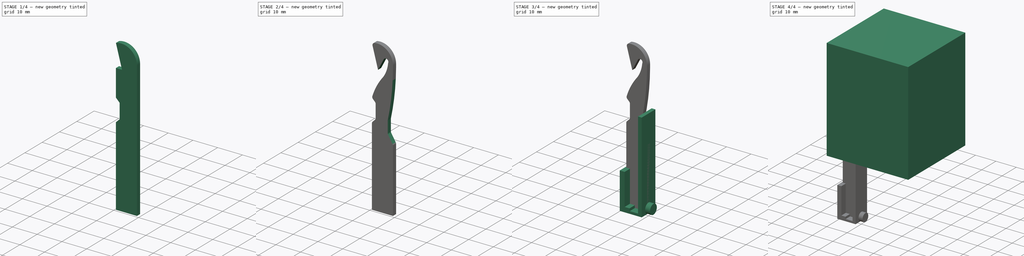
[diagram: build sequence overview — one tinted view per stage of 4, left to right]
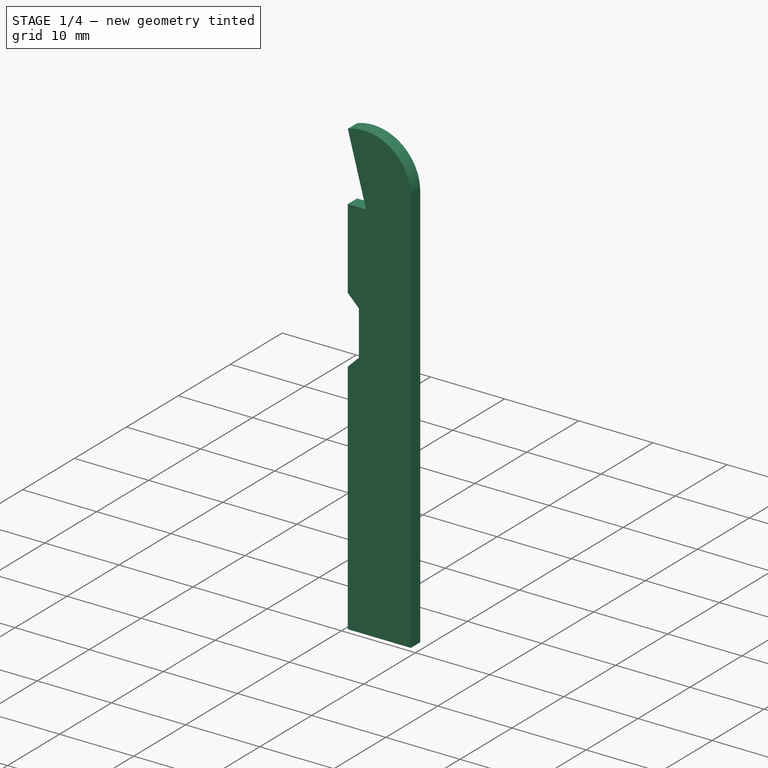
[diagram: stage 1 of 4 — iso view after this stage's code; geometry added in this stage tinted green]
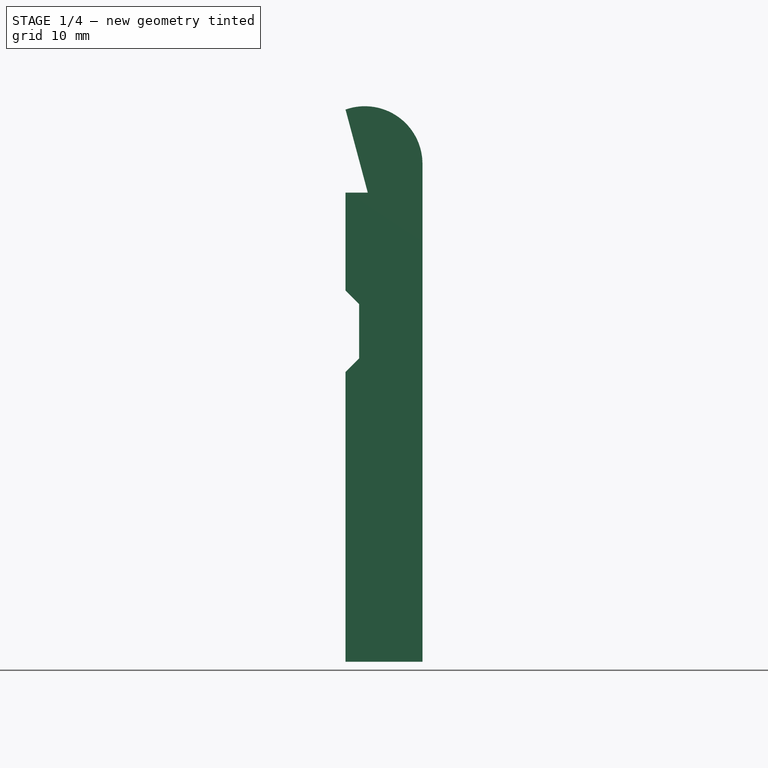
[diagram: stage 1 of 4 — front view after this stage's code; geometry added in this stage tinted green]
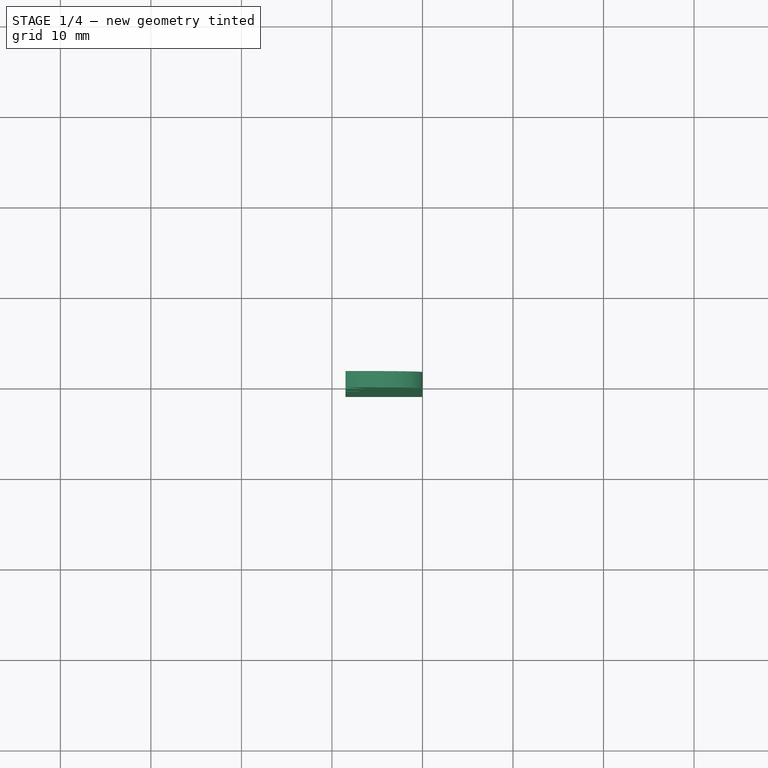
[diagram: stage 1 of 4 — top view after this stage's code; geometry added in this stage tinted green]
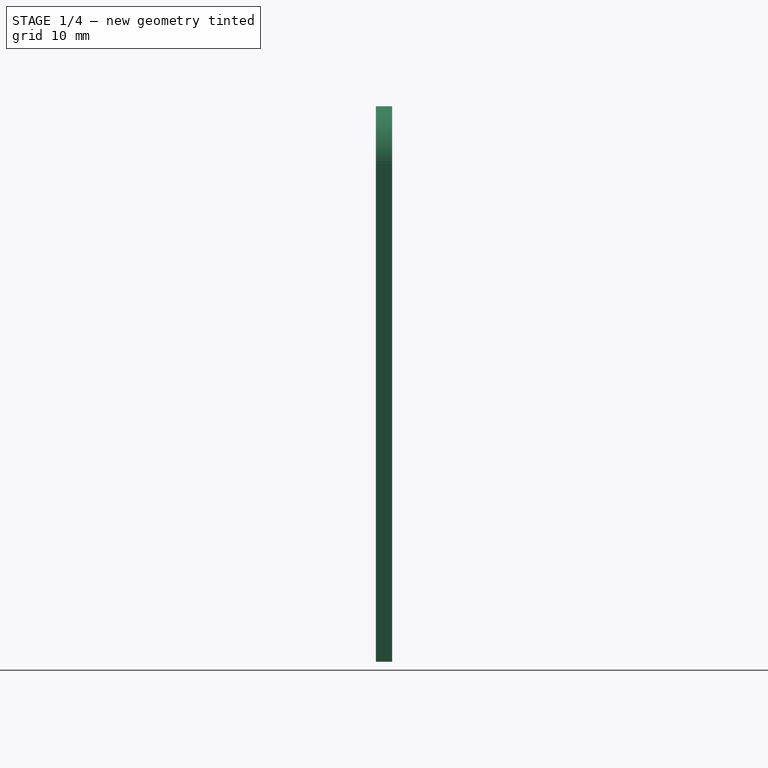
[diagram: stage 1 of 4 — right view after this stage's code; geometry added in this stage tinted green]
FCSTD DOCUMENT  (FreeCAD 0.16RUnknown)
Label: needle
License: CC-BY 3.0
LicenseURL: http://creativecommons.org/licenses/by/3.0/
objects: Sketcher::SketchObject×9, App::MeasureDistance×6, PartDesign::Pad×5, PartDesign::Pocket×4, Part::Box×1, Part::MultiFuse×1, PartDesign::Fillet×1
note: 30 computed .brp shape members not serialized (recipe doc carries the construction recipe); baked Part::Feature solids carry a one-line shape summary decoded from their .brp

FEATURE [Sketcher::SketchObject] Sketch004  label="base"
  Placement = pos=(0,0,0) rot=(1,0,0;1.5708rad)
  sketch-geometry (4):
    g0: LineSegment StartX=0 StartY=0 StartZ=0 EndX=0 EndY=55 EndZ=0
    g1: LineSegment StartX=0 StartY=0 StartZ=0 EndX=-8.5 EndY=0 EndZ=0
    g2: ArcOfCircle CenterX=-6.36764 CenterY=55 CenterZ=0 NormalX=0 NormalY=0 NormalZ=1 Radius=6.36764 StartAngle=6.28318 EndAngle=8.19545
    g3: LineSegment StartX=-8.5 StartY=61 StartZ=0 EndX=-8.5 EndY=0 EndZ=0
  constraints (13):
    c: Vertical(g0)
    c: Horizontal(g1)
    c: Vertical(g3)
    c: DistanceX(g1,g1) = 8.5
    c: DistanceY(g1,g2) = 61
    c: Coincident(g1,g0)
    c: Coincident(g3,g2)
    c: Coincident(g0,g2)
    c: Tangent(g0,g2)
    c: PointOnObject(g-1,g1)
    c: DistanceY(g0,g2) = 6
    c: DistanceX(g-1,g0) = 0
    c: Coincident(g3,g1)
FEATURE [PartDesign::Pad] Pad006
  Length = 1.8
  Length2 = 100
  Midplane = true
  Placement = pos=(0,0,0) rot=(1,0,0;1.5708rad)
  Sketch = -> Sketch004
  Type = 0
FEATURE [Sketcher::SketchObject] Sketch006  label="crest"
  ExternalGeometry = -> [Pad006]
  Placement = pos=(0,-0.9,0) rot=(1,0,0;1.5708rad)
  Support = -> Pad006 [Face6]
  sketch-geometry (5):
    g0: LineSegment StartX=-7 StartY=33.5 StartZ=0 EndX=-7 EndY=39.5 EndZ=0
    g1: LineSegment StartX=-8.5 StartY=41 StartZ=0 EndX=-8.5 EndY=32 EndZ=0
    g2: LineSegment StartX=-8.5 StartY=41 StartZ=0 EndX=-7 EndY=39.5 EndZ=0
    g3: LineSegment StartX=-8.5 StartY=32 StartZ=0 EndX=-7 EndY=33.5 EndZ=0
    g4: LineSegment [constr] StartX=-8.5 StartY=36.5 StartZ=0 EndX=-7 EndY=36.5 EndZ=0
  constraints (16):
    c: Distance(g0) = 6
    c: Parallel(g1,g0)
    c: Coincident(g2,g0)
    c: Coincident(g3,g0)
    c: Angle(g1,g2) = 0.785398
    c: PointOnObject(g4,g1)
    c: PointOnObject(g4,g0)
    c: Horizontal(g4)
    c: Symmetric(g0,g0,g4)
    c: Symmetric(g1,g1,g4)
    c: Coincident(g2,g1)
    c: Distance(g4) = 1.5
    c: Coincident(g1,g3)
    c: Vertical(g1)
    c: PointOnObject(g1,g-3)
    c: DistanceY(g-3,g1) = 32
FEATURE [PartDesign::Pocket] Pocket
  Length = 5
  Placement = pos=(0,0,0) rot=(1,0,0;1.5708rad)
  Sketch = -> Sketch006
  Type = 1
FEATURE [Sketcher::SketchObject] Sketch005  label="forehead"
  ExternalGeometry = -> [Pocket]
  Placement = pos=(0,-0.9,0) rot=(1,0,0;1.5708rad)
  Support = -> Pocket [Face5]
  sketch-geometry (3):
    g0: LineSegment StartX=-8.5 StartY=61 StartZ=0 EndX=-8.5 EndY=51.8237 EndZ=0
    g1: LineSegment StartX=-8.5 StartY=61 StartZ=0 EndX=-6.04122 EndY=51.8237 EndZ=0
    g2: LineSegment StartX=-8.5 StartY=51.8237 StartZ=0 EndX=-6.04122 EndY=51.8237 EndZ=0
  constraints (6):
    c: Coincident(g1,g0)
    c: Vertical(g0)
    c: Coincident(g2,g0)
    c: Coincident(g1,g2)
    c: Horizontal(g2)
    c: Distance(g1) = 9.5
FEATURE [PartDesign::Pocket] Pocket001
  Length = 5
  Placement = pos=(0,0,0) rot=(1,0,0;1.5708rad)
  Sketch = -> Sketch005
  Type = 1
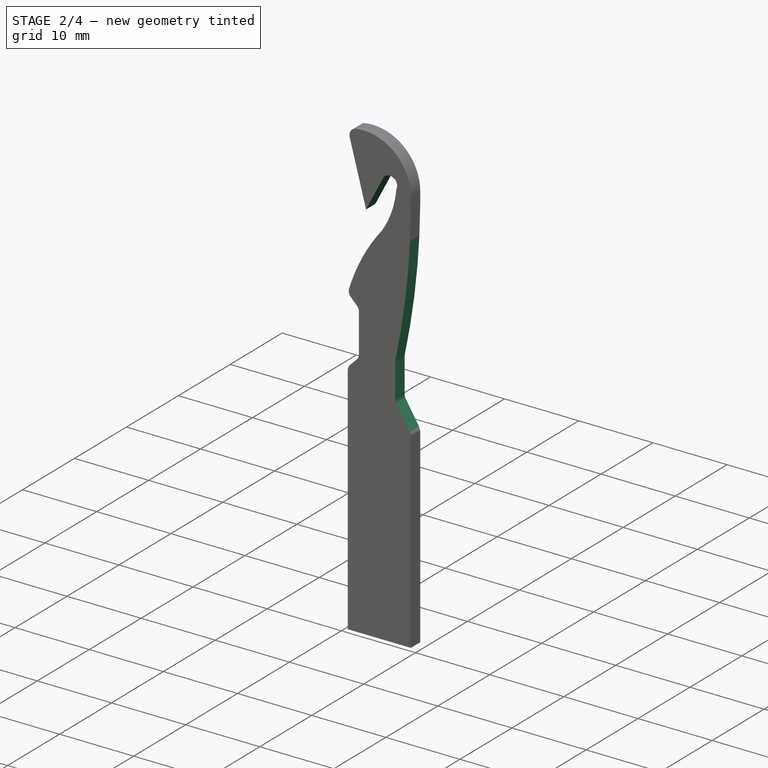
[diagram: stage 2 of 4 — iso view after this stage's code; geometry added in this stage tinted green]
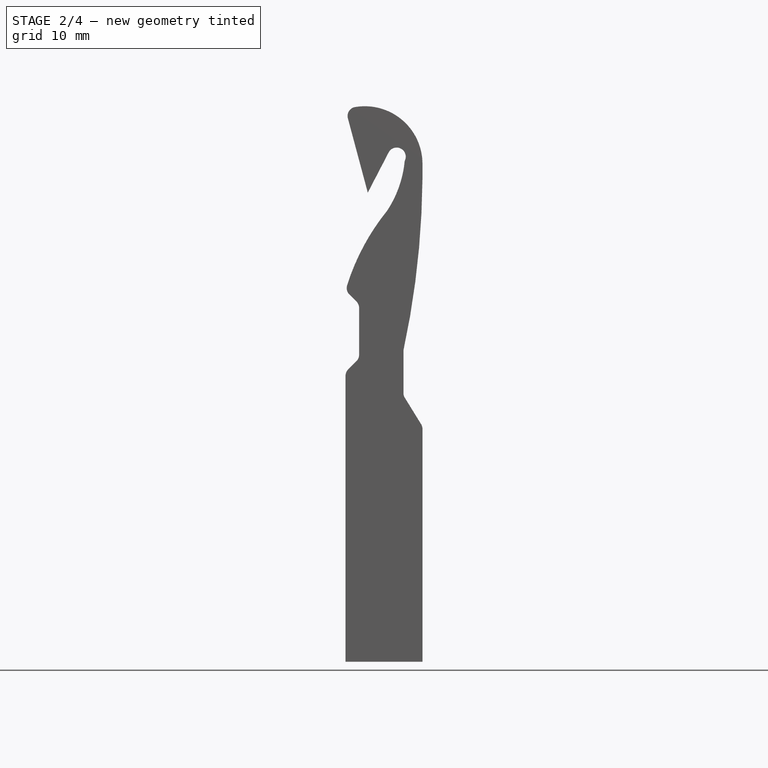
[diagram: stage 2 of 4 — front view after this stage's code; geometry added in this stage tinted green]
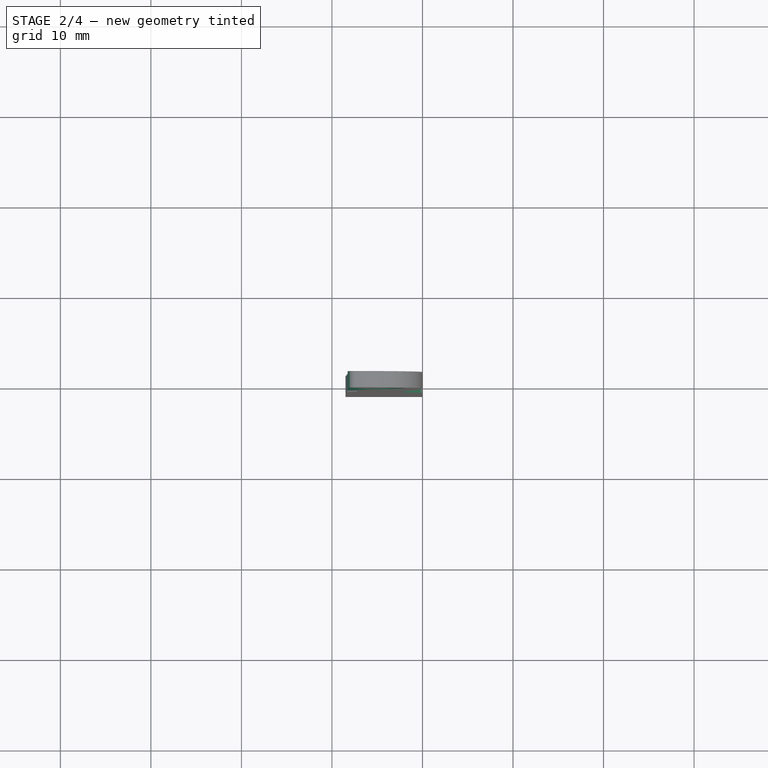
[diagram: stage 2 of 4 — top view after this stage's code; geometry added in this stage tinted green]
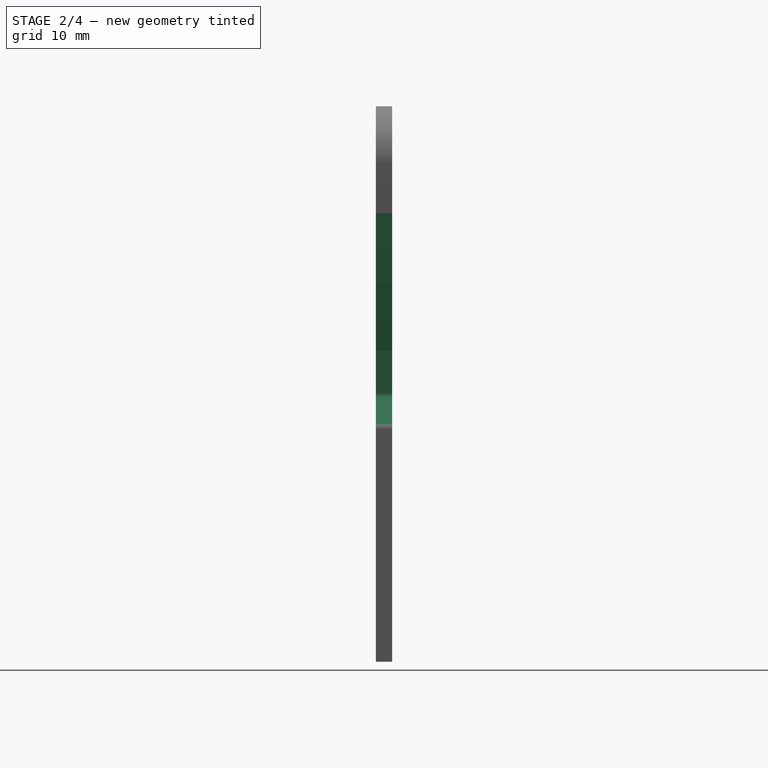
[diagram: stage 2 of 4 — right view after this stage's code; geometry added in this stage tinted green]
FEATURE [Sketcher::SketchObject] Sketch007  label="hole"
  ExternalGeometry = -> [Pocket001]
  Placement = pos=(0,-0.9,0) rot=(1,0,0;1.5708rad)
  Support = -> Pocket001 [Face5]
  sketch-geometry (8):
    g0: ArcOfCircle CenterX=-13.9112 CenterY=56.4446 CenterZ=0 NormalX=0 NormalY=0 NormalZ=1 Radius=12 StartAngle=5.69874 EndAngle=6.19097
    g1: LineSegment [constr] StartX=-6.04122 StartY=51.8237 StartZ=0 EndX=-6.07079 EndY=52.4849 EndZ=0
    g2: ArcOfCircle CenterX=-2.8497 CenterY=55.8004 CenterZ=0 NormalX=0 NormalY=0 NormalZ=1 Radius=1 StartAngle=5.80428 EndAngle=8.94588
    g3: LineSegment StartX=-6.04122 StartY=51.8237 StartZ=0 EndX=-3.7372 EndY=56.2612 EndZ=0
    g4: LineSegment [constr] StartX=-3.7372 StartY=56.2612 StartZ=0 EndX=-1.9622 EndY=55.3396 EndZ=0
    g5: ArcOfCircle CenterX=15.5266 CenterY=34.0919 CenterZ=0 NormalX=0 NormalY=0 NormalZ=1 Radius=25 StartAngle=2.46098 EndAngle=2.86163
    g6: LineSegment StartX=-6.04122 StartY=51.8237 StartZ=0 EndX=-8.5 EndY=51.8237 EndZ=0
    g7: LineSegment StartX=-8.5 StartY=51.8237 StartZ=0 EndX=-8.5 EndY=41 EndZ=0
  constraints (19):
    c: Coincident(g2,g0)
    c: Coincident(g3,g1)
    c: Coincident(g3,g2)
    c: Tangent(g3,g2)
    c: Coincident(g4,g2)
    c: Coincident(g4,g0)
    c: Distance(g4) = 2
    c: Distance(g3) = 5
    c: Radius(g5) = 25
    c: Angle(g1,g-2) = 3.0969
    c: DistanceY(g0,g1) = 2
    c: Coincident(g0,g5)
    c: Radius(g0) = 12
    c: DistanceX(g1,g0) = 2.1382
    c: Coincident(g6,g1)
    c: Coincident(g7,g6)
    c: Coincident(g7,g5)
    c: Angle(g3,g6) = 2.0497
    c: Perpendicular(g4,g3)
FEATURE [PartDesign::Pocket] Pocket002
  Length = 5
  Placement = pos=(0,0,0) rot=(1,0,0;1.5708rad)
  Sketch = -> Sketch007
  Type = 1
FEATURE [Sketcher::SketchObject] Sketch008  label="neckback"
  ExternalGeometry = -> [Pocket002]
  Placement = pos=(0,-0.9,0) rot=(1,0,0;1.5708rad)
  Support = -> Pocket002 [Face5]
  sketch-geometry (4):
    g0: LineSegment StartX=0 StartY=26 StartZ=0 EndX=-2.1 EndY=29.4044 EndZ=0
    g1: LineSegment StartX=-2.1 StartY=29.4044 StartZ=0 EndX=-2.1 EndY=34.4044 EndZ=0
    g2: ArcOfCircle CenterX=-94.0009 CenterY=54.1798 CenterZ=0 NormalX=0 NormalY=0 NormalZ=1 Radius=94.0045 StartAngle=6.07124 EndAngle=6.29191
    g3: LineSegment StartX=0 StartY=55 StartZ=0 EndX=0 EndY=26 EndZ=0
  constraints (12):
    c: PointOnObject(g0,g-2)
    c: Coincident(g1,g0)
    c: Vertical(g1)
    c: Coincident(g2,g1)
    c: Coincident(g3,g2)
    c: Coincident(g3,g0)
    c: Vertical(g3)
    c: DistanceY(g-1,g0) = 26
    c: Distance(g0) = 4
    c: DistanceX(g0,g0) = 2.1
    c: Coincident(g2,g-3)
    c: DistanceY(g1,g1) = 5
FEATURE [PartDesign::Pocket] Pocket003
  Length = 5
  Placement = pos=(0,0,0) rot=(1,0,0;1.5708rad)
  Sketch = -> Sketch008
  Type = 1
FEATURE [PartDesign::Fillet] Fillet
  Base = -> Pocket003 [Edge45,Edge40,Edge39,Edge38,Edge37,Edge21,Edge2]
  Placement = pos=(0,0,0) rot=(1,0,0;1.5708rad)
  Radius = 1
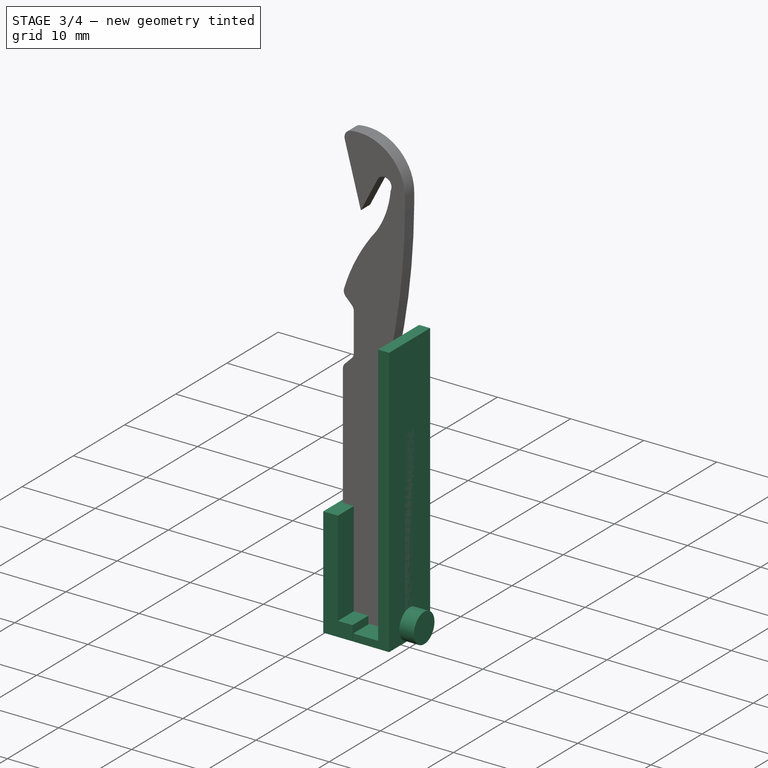
[diagram: stage 3 of 4 — iso view after this stage's code; geometry added in this stage tinted green]
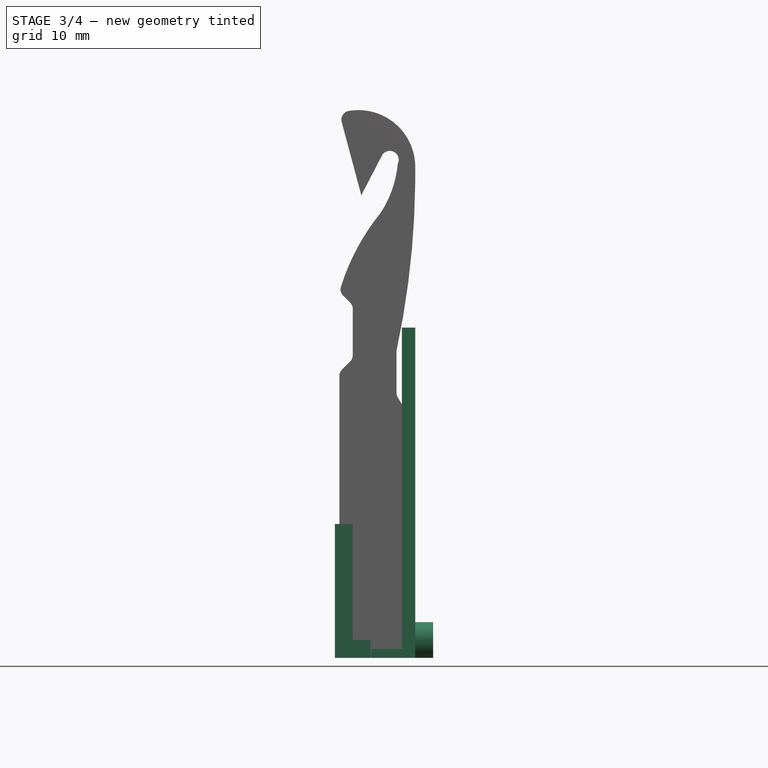
[diagram: stage 3 of 4 — front view after this stage's code; geometry added in this stage tinted green]
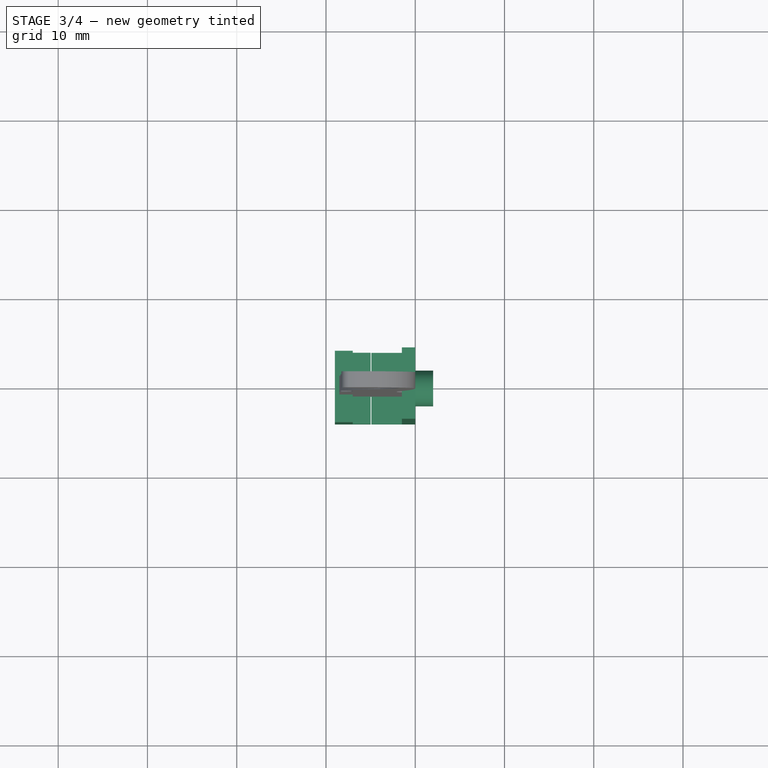
[diagram: stage 3 of 4 — top view after this stage's code; geometry added in this stage tinted green]
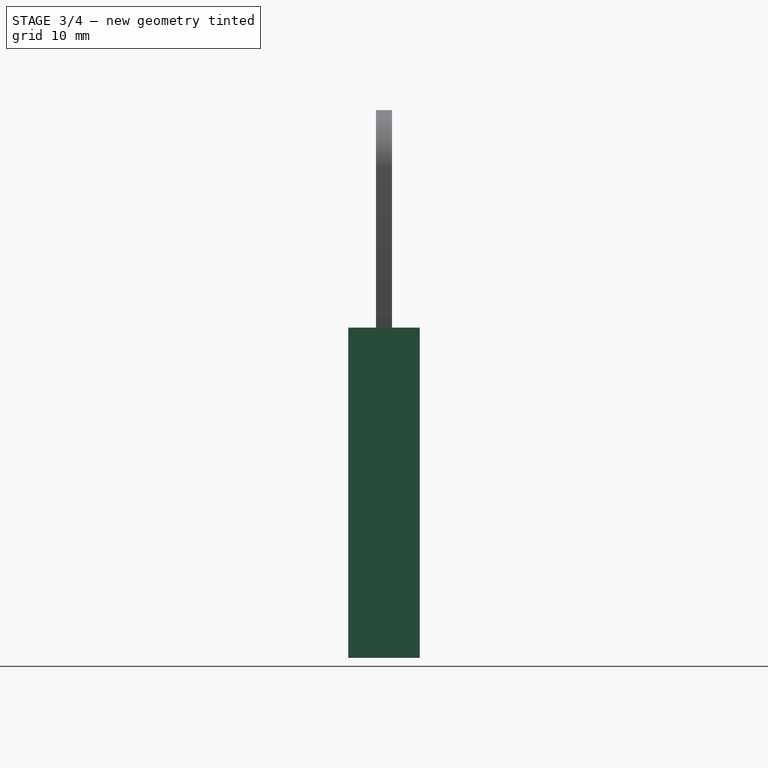
[diagram: stage 3 of 4 — right view after this stage's code; geometry added in this stage tinted green]
FEATURE [Sketcher::SketchObject] Sketch  label="needle-outer"
  Placement = pos=(0,0,0) rot=(1,0,0;1.5708rad)
  sketch-geometry (11):
    g0: LineSegment StartX=-1.5 StartY=37 StartZ=0 EndX=0 EndY=37 EndZ=0
    g1: LineSegment StartX=0 StartY=37 StartZ=0 EndX=0 EndY=0 EndZ=0
    g2: ArcOfCircle [constr] CenterX=38.9236 CenterY=39.4764 CenterZ=0 NormalX=0 NormalY=0 NormalZ=1 Radius=39.0023 StartAngle=2.63123 EndAngle=3.20513
    g3: ArcOfCircle [constr] CenterX=40.4733 CenterY=36.4786 CenterZ=0 NormalX=0 NormalY=0 NormalZ=1 Radius=41.9765 StartAngle=2.59538 EndAngle=3.12917
    g4: LineSegment StartX=0 StartY=0 StartZ=0 EndX=-4.90865 EndY=0 EndZ=0
    g5: LineSegment StartX=-4.90865 StartY=0 StartZ=0 EndX=-4.90865 EndY=1 EndZ=0
    g6: LineSegment StartX=-4.90865 StartY=1 StartZ=0 EndX=-1.5 EndY=1 EndZ=0
    g7: LineSegment StartX=-1.5 StartY=37 StartZ=0 EndX=-1.5 EndY=1 EndZ=0
    g8: ArcOfCircle [constr] CenterX=-14.4844 CenterY=64.0326 CenterZ=0 NormalX=0 NormalY=0 NormalZ=1 Radius=20.1425 StartAngle=6.00643 EndAngle=6.43238
    g9: ArcOfCircle [constr] CenterX=-11.542 CenterY=63.0969 CenterZ=0 NormalX=0 NormalY=0 NormalZ=1 Radius=16.8486 StartAngle=5.99345 EndAngle=6.4867
    g10: LineSegment [constr] StartX=4.95886 StartY=66.5022 StartZ=0 EndX=5.43428 EndY=67.0266 EndZ=0
  constraints (22):
    c: Coincident(g0,g1)
    c: Horizontal(g0)
    c: Vertical(g1)
    c: DistanceY(g1) = -37
    c: Coincident(g2,g0)
    c: Coincident(g4,g5)
    c: Coincident(g5,g6)
    c: Horizontal(g4)
    c: Horizontal(g6)
    c: Vertical(g5)
    c: Coincident(g7,g0)
    c: Coincident(g7,g6)
    c: Vertical(g7)
    c: Coincident(g8,g2)
    c: Coincident(g3,g0)
    c: Coincident(g4,g-1)
    c: DistanceX(g-1,g6) = -1.5
    c: DistanceY(g5) = 1
    c: Coincident(g-1,g1)
    c: Coincident(g9,g3)
    c: Coincident(g10,g9)
    c: Coincident(g10,g8)
FEATURE [Sketcher::SketchObject] Sketch002  label="guide-pin"
  Placement = pos=(0,0,0) rot=(0.57735,0.57735,0.57735;2.0944rad)
  sketch-geometry (1):
    g0: Circle CenterX=0 CenterY=2 CenterZ=0 NormalX=0 NormalY=0 NormalZ=1 Radius=2
  constraints (3):
    c: PointOnObject(g0,g-2)
    c: DistanceY(g-1,g0) = 2
    c: Radius(g0) = 2
FEATURE [App::MeasureDistance] Distance  label="Distance: 3.999"
  Distance = 3.99946
  P1 = (0.00231622,-0.236815,0.0153526)
  P2 = (4,-0.11788,0.00832193)
FEATURE [App::MeasureDistance] Distance001  label="Distance: 3.962"
  Distance = 3.9619
  P1 = (3.99617,-1.99139,1.83564)
  P2 = (4,1.96786,1.98064)
FEATURE [App::MeasureDistance] Distance002  label="Distance: 5.787"
  Distance = 5.78742
  P1 = (-4.99358,-1,2.81958)
  P2 = (-0.0482684,-4,3.01479)
FEATURE [App::MeasureDistance] Distance003  label="Distance: 4.881"
  Distance = 4.88093
  P1 = (-4.90506,-4,0.00223583)
  P2 = (-0.0241406,-3.98973,-4.75613e-07)
FEATURE [Sketcher::SketchObject] Sketch003  label="guide-twist-lock"
  Placement = pos=(0,0,0) rot=(1,0,0;1.5708rad)
  sketch-geometry (6):
    g0: LineSegment StartX=-9 StartY=15 StartZ=0 EndX=-7 EndY=15 EndZ=0
    g1: LineSegment StartX=-5 StartY=0 StartZ=0 EndX=-9 EndY=0 EndZ=0
    g2: LineSegment StartX=-9 StartY=0 StartZ=0 EndX=-9 EndY=15 EndZ=0
    g3: LineSegment StartX=-5 StartY=0 StartZ=0 EndX=-5 EndY=2 EndZ=0
    g4: LineSegment StartX=-5 StartY=2 StartZ=0 EndX=-7 EndY=2 EndZ=0
    g5: LineSegment StartX=-7 StartY=2 StartZ=0 EndX=-7 EndY=15 EndZ=0
  constraints (18):
    c: Coincident(g1,g2)
    c: Coincident(g2,g0)
    c: Horizontal(g0)
    c: Horizontal(g1)
    c: Vertical(g2)
    c: Coincident(g3,g1)
    c: Vertical(g3)
    c: Coincident(g4,g3)
    c: Horizontal(g4)
    c: Coincident(g5,g4)
    c: Coincident(g5,g0)
    c: Vertical(g5)
    c: DistanceY(g3) = 2
    c: DistanceY(g2) = 15
    c: DistanceX(g0) = 2
    c: DistanceX(g4) = -2
    c: DistanceY(g-1,g1) = 0
    c: DistanceX(g-1,g1) = -5
FEATURE [PartDesign::Pad] Pad003
  Length = 8
  Length2 = 100
  Midplane = true
  Placement = pos=(0,0,0) rot=(1,0,0;1.5708rad)
  Sketch = -> Sketch003
  Type = 0
FEATURE [App::MeasureDistance] Distance005  label="Distance: 1.800"
  Distance = 1.8
  P1 = (-5,0.9,30)
  P2 = (-5,-0.9,30)
FEATURE [PartDesign::Pad] Pad004
  Length = 2
  Length2 = 100
  Placement = pos=(0,0,0) rot=(0.57735,0.57735,0.57735;2.0944rad)
  Sketch = -> Sketch002
  Type = 0
FEATURE [PartDesign::Pad] Pad005
  Length = 8
  Length2 = 100
  Midplane = true
  Placement = pos=(0,0,0) rot=(1,0,0;1.5708rad)
  Sketch = -> Sketch
  Type = 0
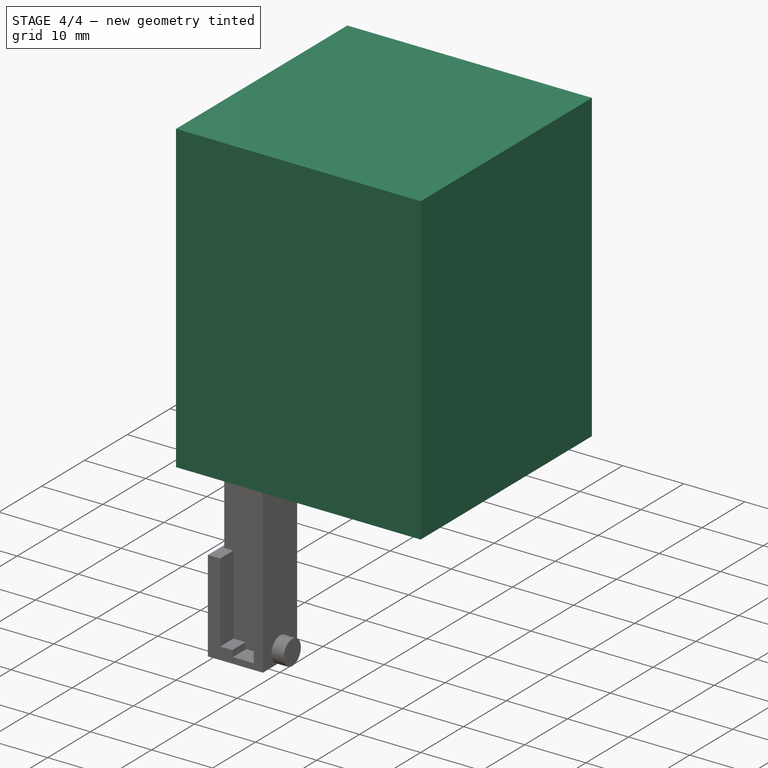
[diagram: stage 4 of 4 — iso view after this stage's code; geometry added in this stage tinted green]
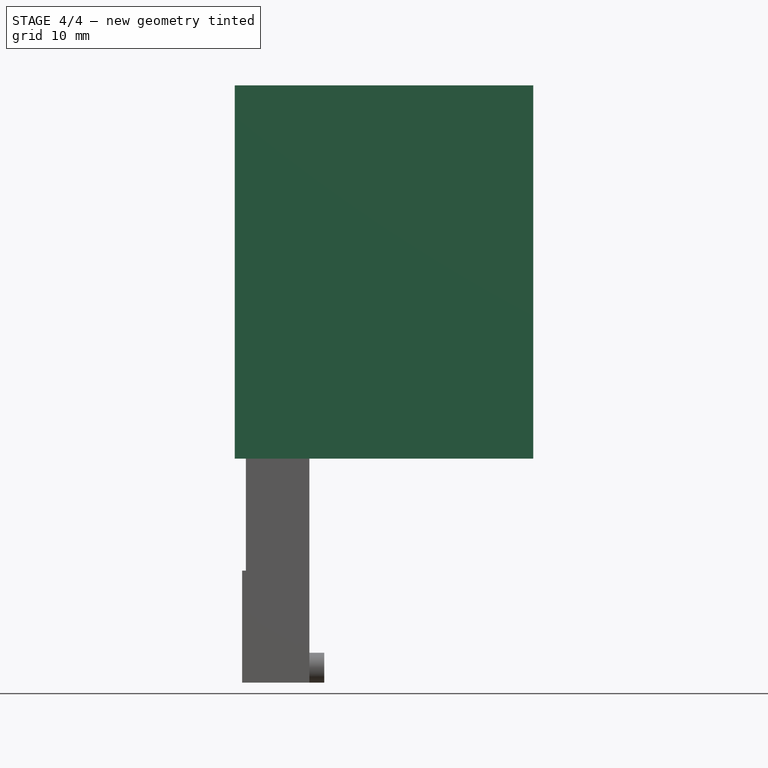
[diagram: stage 4 of 4 — front view after this stage's code; geometry added in this stage tinted green]
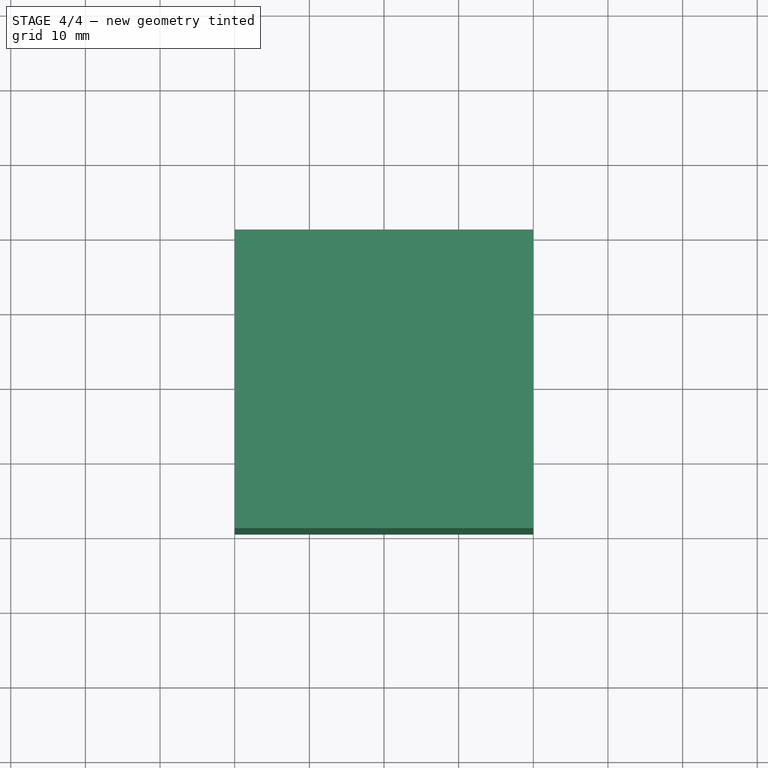
[diagram: stage 4 of 4 — top view after this stage's code; geometry added in this stage tinted green]
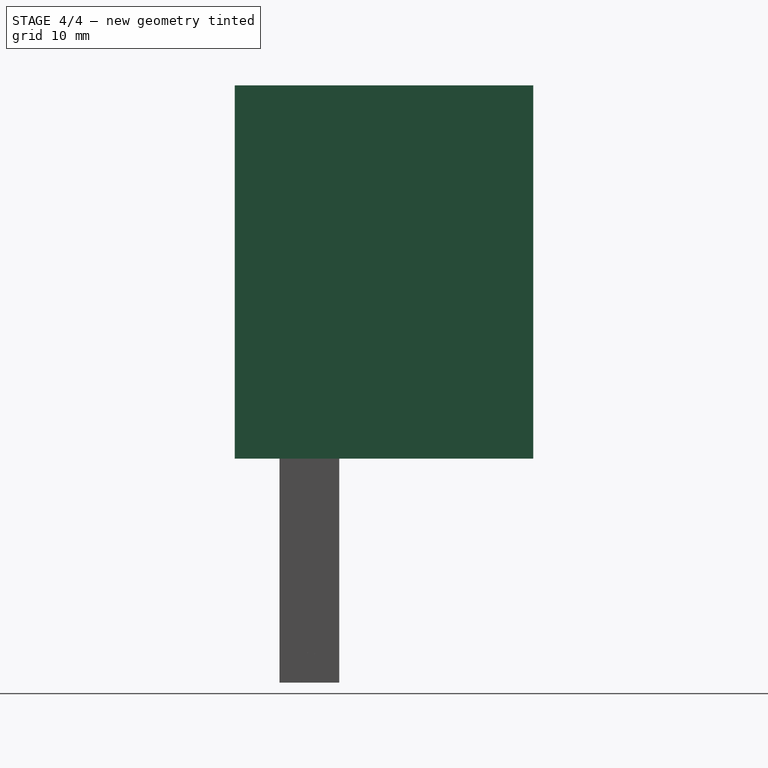
[diagram: stage 4 of 4 — right view after this stage's code; geometry added in this stage tinted green]
FEATURE [Sketcher::SketchObject] Sketch001  label="needle-center"
  Placement = pos=(0,0,0) rot=(1,0,0;1.5708rad)
  sketch-geometry (20):
    g0: LineSegment StartX=0 StartY=0 StartZ=0 EndX=0 EndY=28.2187 EndZ=0
    g1: LineSegment StartX=0 StartY=0 StartZ=0 EndX=-5 EndY=0 EndZ=0
    g2: LineSegment StartX=-5 StartY=0 StartZ=0 EndX=-5 EndY=20 EndZ=0
    g3: LineSegment StartX=-3.35837 StartY=21.6188 StartZ=0 EndX=-2.92259 EndY=26.5998 EndZ=0
    g4: ArcOfCircle CenterX=-22.3623 CenterY=51.143 CenterZ=0 NormalX=0 NormalY=0 NormalZ=1 Radius=23.8809 StartAngle=5.71132 EndAngle=6.08312
    g5: LineSegment StartX=-4.41916 StartY=40.2187 StartZ=0 EndX=-5 EndY=53.2057 EndZ=0
    g6: ArcOfCircle CenterX=-3.24502 CenterY=47.1626 CenterZ=0 NormalX=0 NormalY=0 NormalZ=1 Radius=6.29272 StartAngle=6.01175 EndAngle=8.13662
    g7: LineSegment [constr] StartX=-4.28096 StartY=28.2187 StartZ=0 EndX=-5 EndY=20 EndZ=0
    g8: LineSegment StartX=-4.28096 StartY=28.2187 StartZ=0 EndX=-2.92259 EndY=26.5998 EndZ=0
    g9: LineSegment StartX=-5 StartY=20 StartZ=0 EndX=-3.35837 EndY=21.6188 EndZ=0
    g10: LineSegment [constr] StartX=-4.64048 StartY=24.1093 StartZ=0 EndX=-3.14048 EndY=24.1093 EndZ=0
    g11: LineSegment [constr] StartX=-4.28096 StartY=28.2187 StartZ=0 EndX=0 EndY=28.2187 EndZ=0
    g12: ArcOfCircle CenterX=0.154796 CenterY=46.8579 CenterZ=0 NormalX=0 NormalY=0 NormalZ=1 Radius=1 StartAngle=5.80427 EndAngle=8.94588
    g13: LineSegment StartX=-4.41916 StartY=40.2187 StartZ=0 EndX=-0.732708 EndY=47.3187 EndZ=0
    g14: LineSegment [constr] StartX=-0.732708 StartY=47.3187 StartZ=0 EndX=1.04229 EndY=46.397 EndZ=0
    g15: LineSegment [constr] StartX=1.04229 StartY=46.397 StartZ=0 EndX=2.81729 EndY=45.4754 EndZ=0
    g16: ArcOfCircle CenterX=-20.5755 CenterY=51.1731 CenterZ=0 NormalX=0 NormalY=0 NormalZ=1 Radius=24.0767 StartAngle=5.71506 EndAngle=6.04427
    g17: ArcOfCircle CenterX=35.6223 CenterY=25.438 CenterZ=0 NormalX=0 NormalY=0 NormalZ=1 Radius=40 StartAngle=2.81637 EndAngle=3.07202
    g18: ArcOfCircle CenterX=99.6949 CenterY=36.0236 CenterZ=0 NormalX=0 NormalY=0 NormalZ=1 Radius=100 StartAngle=3.11964 EndAngle=3.21972
    g19: LineSegment [constr] StartX=-2.28096 StartY=38.2187 StartZ=0 EndX=-0.280961 EndY=38.2187 EndZ=0
  constraints (61):
    c: Coincident(g0,g-1)
    c: Vertical(g0)
    c: Coincident(g1,g-1)
    c: Horizontal(g1)
    c: Coincident(g2,g1)
    c: Vertical(g2)
    c: Coincident(g6,g5)
    c: Distance(g3) = 5
    c: DistanceY(g2) = 20
    c: Coincident(g7,g2)
    c: Parallel(g7,g3)
    c: Coincident(g8,g3)
    c: Coincident(g9,g2)
    c: Coincident(g9,g3)
    c: Angle(g7,g8) = 0.785398
    c: PointOnObject(g10,g7)
    c: PointOnObject(g10,g3)
    c: Horizontal(g10)
    c: Symmetric(g3,g3,g10)
    c: Symmetric(g7,g7,g10)
    c: Angle(g2,g7) = 3.05433
    c: Coincident(g8,g7)
    c: Coincident(g11,g7)
    c: Horizontal(g11)
    c: Coincident(g12,g4)
    c: Coincident(g13,g5)
    c: Coincident(g13,g12)
    c: Tangent(g13,g12)
    c: Coincident(g14,g12)
    c: Angle(g13,g14) = 1.5708
    c: Coincident(g14,g4)
    c: Coincident(g15,g4)
    c: Angle(g15,g14) = 3.14159
    c: Coincident(g6,g15)
    c: Distance(g14) = 2
    c: Distance(g15) = 2
    c: Distance(g13) = 8
    c: Angle(g13,g5) = 0.523599
    c: Distance(g5) = 13
    c: Coincident(g16,g6)
    c: Coincident(g17,g7)
    c: DistanceX(g1) = -5
    c: Radius(g17) = 40
    c: Coincident(g18,g11)
    c: Radius(g18) = 100
    c: Coincident(g0,g11)
    c: DistanceX(g7,g17) = 2
    c: Angle(g5,g-2) = 3.0969
    c: DistanceY(g4,g5) = 2
    c: Radius(g6) = 6.29272
    c: Coincident(g19,g4)
    c: Coincident(g19,g16)
    c: Horizontal(g19)
    c: Coincident(g4,g17)
    c: Coincident(g16,g18)
    c: DistanceY(g16,g0) = -10
    c: DistanceX(g19) = 2
    c: Radius(g16) = 24.0767
    c: Radius(g4) = 23.8809
    c: Distance(g10) = 1.5
    c: DistanceX(g5,g2) = 0
FEATURE [PartDesign::Pad] Pad
  Length = 1.5
  Length2 = 100
  Midplane = true
  Placement = pos=(0,0,0) rot=(1,0,0;1.5708rad)
  Reversed = true
  Sketch = -> Sketch001
  Type = 0
FEATURE [App::MeasureDistance] Distance004  label="Distance: 70.274"
  Distance = 70.2741
  P1 = (-3.85778,-1,70.2043)
  P2 = (-4.89251,-3.95328,0)
FEATURE [Part::Box] Box  label="Cube"
  Height = 50
  Length = 40
  Placement = pos=(-10,-10,30) rot=(0,0,1;0rad)
  Width = 40
FEATURE [Part::MultiFuse] Fusion
  Shapes = -> [Pad,Pad003,Pad004,Pad005]
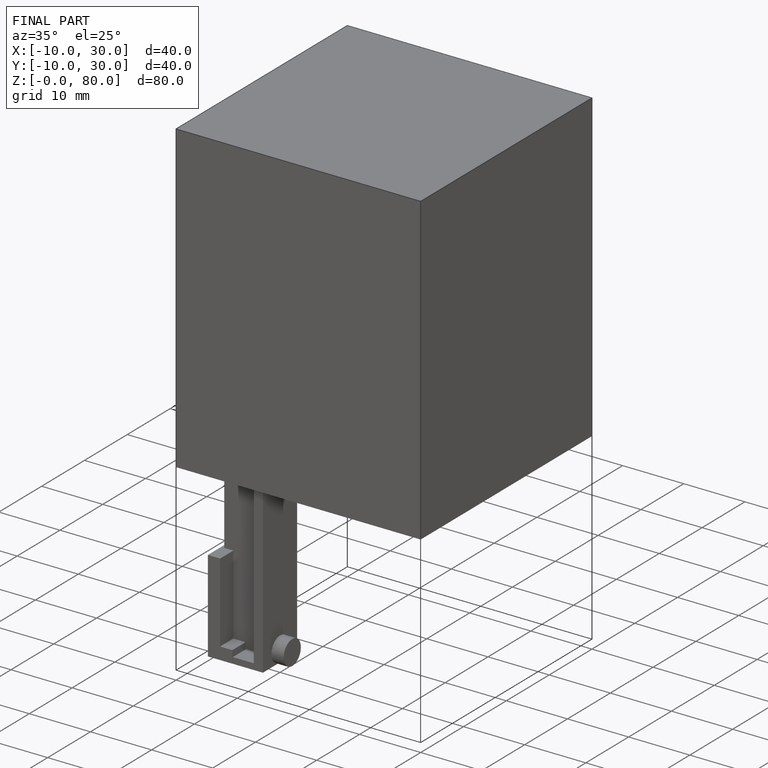
[diagram: finished part — iso view with bounding-box wireframe]
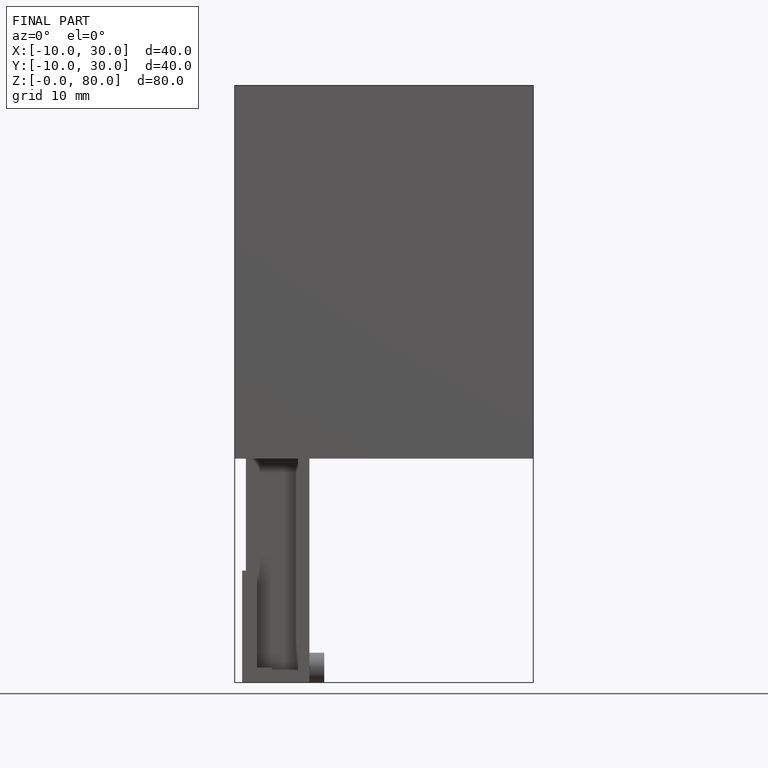
[diagram: finished part — front view with bounding-box wireframe]
